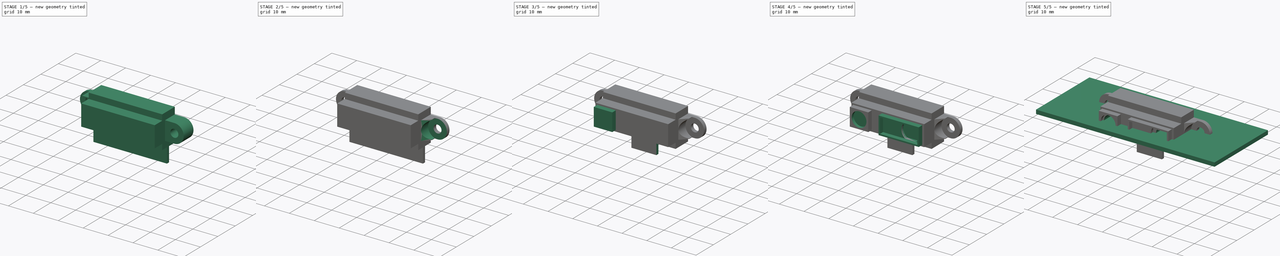
[diagram: build sequence overview — one tinted view per stage of 5, left to right]
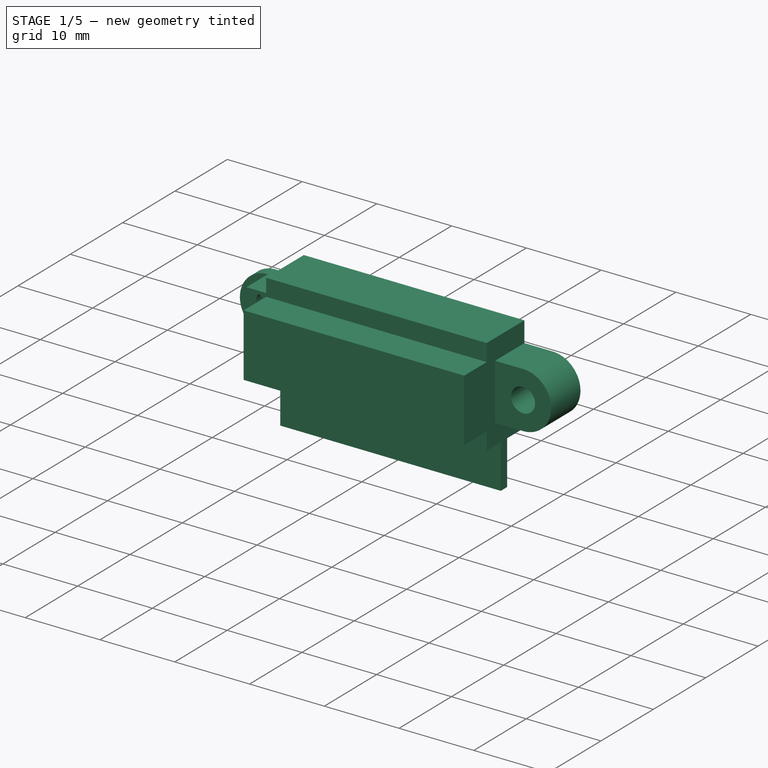
[diagram: stage 1 of 5 — iso view after this stage's code; geometry added in this stage tinted green]
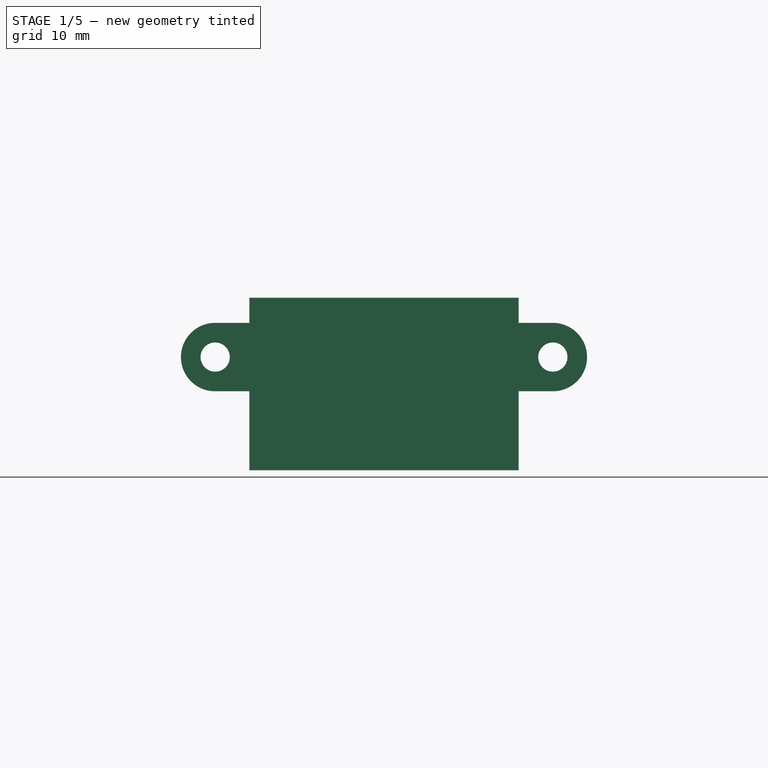
[diagram: stage 1 of 5 — front view after this stage's code; geometry added in this stage tinted green]
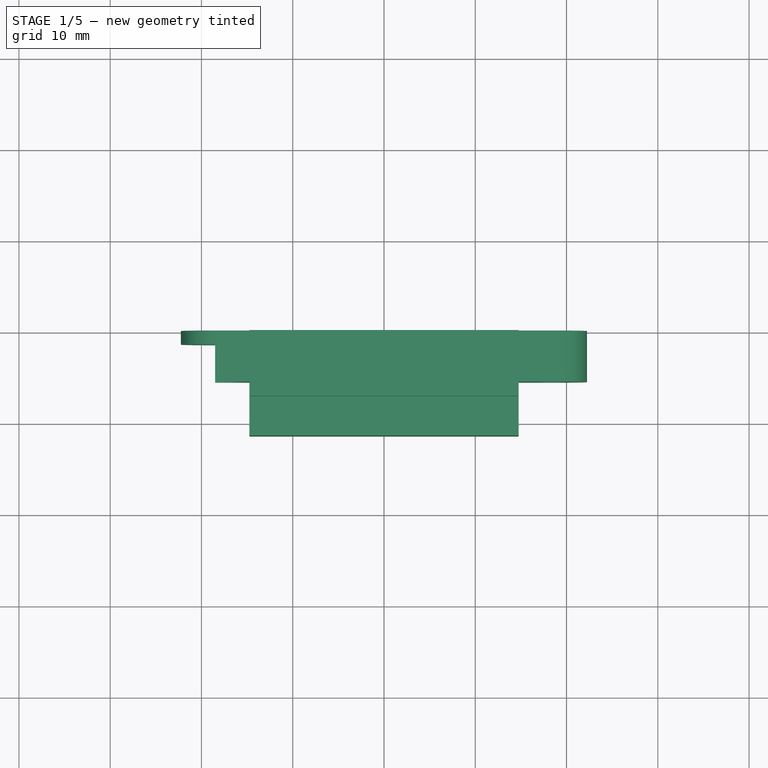
[diagram: stage 1 of 5 — top view after this stage's code; geometry added in this stage tinted green]
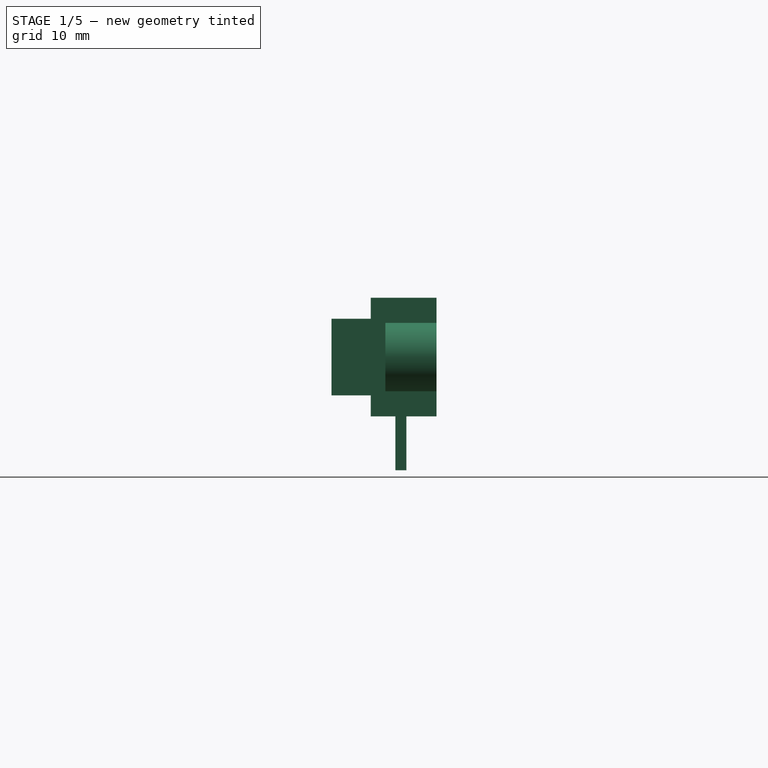
[diagram: stage 1 of 5 — right view after this stage's code; geometry added in this stage tinted green]
FCSTD DOCUMENT  (FreeCAD 0.17R13528 (Git))
Label: Sharp_GP2D120XJ00F
License: All rights reserved
LicenseURL: http://en.wikipedia.org/wiki/All_rights_reserved
objects: Sketcher::SketchObject×14, PartDesign::Pocket×10, Part::Feature×10, PartDesign::Pad×4, PartDesign::Mirrored×4, Part::FeaturePython×4, App::DocumentObjectGroup×2, PartDesign::Body×1, App::VRMLObject×1
note: 61 computed .brp shape members not serialized (recipe doc carries the construction recipe); baked Part::Feature solids carry a one-line shape summary decoded from their .brp

FEATURE [Sketcher::SketchObject] Sketch001
  MapMode = 5
  Placement = pos=(0,0,0) rot=(0.57735,0.57735,0.57735;2.0944rad)
  Support = -> [YZ_Plane001]
  sketch-geometry (12):
    g0: LineSegment StartX=0 StartY=6.5 StartZ=0 EndX=0 EndY=-6.5 EndZ=0
    g1: LineSegment StartX=0 StartY=-6.5 StartZ=0 EndX=-3.3 EndY=-6.5 EndZ=0
    g2: LineSegment StartX=-7.2 StartY=-6.5 StartZ=0 EndX=-7.2 EndY=-4.2 EndZ=0
    g3: LineSegment StartX=-7.2 StartY=-4.2 StartZ=0 EndX=-11.5 EndY=-4.2 EndZ=0
    g4: LineSegment StartX=-11.5 StartY=-4.2 StartZ=0 EndX=-11.5 EndY=4.2 EndZ=0
    g5: LineSegment StartX=-11.5 StartY=4.2 StartZ=0 EndX=-7.2 EndY=4.2 EndZ=0
    g6: LineSegment StartX=-7.2 StartY=4.2 StartZ=0 EndX=-7.2 EndY=6.5 EndZ=0
    g7: LineSegment StartX=-7.2 StartY=6.5 StartZ=0 EndX=0 EndY=6.5 EndZ=0
    g8: LineSegment StartX=-4.5 StartY=-6.5 StartZ=0 EndX=-4.5 EndY=-12.4 EndZ=0
    g9: LineSegment StartX=-4.5 StartY=-12.4 StartZ=0 EndX=-3.3 EndY=-12.4 EndZ=0
    g10: LineSegment StartX=-3.3 StartY=-12.4 StartZ=0 EndX=-3.3 EndY=-6.5 EndZ=0
    g11: LineSegment StartX=-4.5 StartY=-6.5 StartZ=0 EndX=-7.2 EndY=-6.5 EndZ=0
  constraints (34):
    c: Vertical(g0)
    c: Coincident(g1,g0)
    c: Horizontal(g1)
    c: Coincident(g2,g11)
    c: Vertical(g2)
    c: Coincident(g3,g2)
    c: Horizontal(g3)
    c: Vertical(g4)
    c: Coincident(g5,g4)
    c: Horizontal(g5)
    c: Coincident(g6,g5)
    c: Vertical(g6)
    c: Coincident(g7,g6)
    c: Coincident(g7,g0)
    c: Horizontal(g7)
    c: Symmetric(g0,g0,g-1)
    c: Symmetric(g5,g2,g-1)
    c: Vertical(g8)
    c: Coincident(g9,g8)
    c: Horizontal(g9)
    c: Coincident(g10,g9)
    c: Vertical(g10)
    c: DistanceY(g3,g4) = 8.4
    c: DistanceY(g11,g6) = 13
    c: DistanceX(g9,g0) = 3.3
    c: DistanceX(g9,g9) = 1.2
    c: PointOnObject(g0,g-2)
    c: DistanceY(g8,g6) = 18.9
    c: Coincident(g1,g10)
    c: Coincident(g11,g8)
    c: Tangent(g1,g11)
    c: Coincident(g4,g3)
    c: DistanceX(g5,g5) = 4.3
    c: DistanceX(g4,g0) = 11.5
FEATURE [PartDesign::Pad] Pad
  Length = 29.5
  Length2 = 100
  Midplane = true
  Placement = pos=(0,0,0) rot=(0.57735,0.57735,0.57735;2.0944rad)
  Profile = -> Sketch001
  Refine = true
  Type = 0
FEATURE [Sketcher::SketchObject] Sketch002
  ExternalGeometry = -> [Pad]
  MapMode = 5
  Placement = pos=(0,0,0) rot=(1,0,0;1.5708rad)
  Support = -> [XZ_Plane001]
  sketch-geometry (6):
    g0: Circle CenterX=-18.5 CenterY=0 CenterZ=0 NormalX=0 NormalY=0 NormalZ=1 AngleXU=0 Radius=1.6
    g1: ArcOfCircle CenterX=-18.5 CenterY=0 CenterZ=0 NormalX=0 NormalY=0 NormalZ=1 AngleXU=0 Radius=3.75 StartAngle=1.5708 EndAngle=4.71239
    g2: LineSegment StartX=-18.5 StartY=3.75 StartZ=0 EndX=-14.75 EndY=3.75 EndZ=0
    g3: LineSegment StartX=-18.5 StartY=-3.75 StartZ=0 EndX=-14.75 EndY=-3.75 EndZ=0
    g4: LineSegment StartX=-14.75 StartY=-3.75 StartZ=0 EndX=-14.75 EndY=3.75 EndZ=0
    g5: LineSegment [constr] StartX=-18.5 StartY=3.75 StartZ=0 EndX=-18.5 EndY=-3.75 EndZ=0
  constraints (18):
    c: PointOnObject(g0,g-1)
    c: Coincident(g2,g1)
    c: Horizontal(g2)
    c: Coincident(g3,g1)
    c: Horizontal(g3)
    c: Coincident(g4,g3)
    c: Coincident(g4,g2)
    c: Vertical(g4)
    c: Coincident(g0,g1)
    c: Coincident(g5,g1)
    c: Coincident(g5,g1)
    c: Vertical(g5)
    c: PointOnObject(g0,g5)
    c: Equal(g1,g2)
    c: DistanceX(g2,g2) = 3.75
    c: Radius(g0) = 1.6
    c: Radius(g1) = 3.75
    c: PointOnObject(g2,g-3)
FEATURE [PartDesign::Pad] Pad002
  BaseFeature = -> Pad
  Length = 5.6
  Length2 = 100
  Placement = pos=(0,0,0) rot=(0.57735,0.57735,0.57735;2.0944rad)
  Profile = -> Sketch002
  Refine = true
  Type = 0
FEATURE [PartDesign::Mirrored] Mirrored
  BaseFeature = -> Pad002
  MirrorPlane = -> Sketch002 [V_Axis]
  Originals = -> [Pad002]
  Placement = pos=(0,0,0) rot=(0.57735,0.57735,0.57735;2.0944rad)
  Refine = true
FEATURE [Sketcher::SketchObject] Sketch003
  ExternalGeometry = -> [Mirrored]
  MapMode = 5
  Placement = pos=(0,-5.6,0) rot=(0.57735,0.57735,-0.57735;2.0944rad)
  Support = -> [Mirrored]
  sketch-geometry (1):
    g0: Circle CenterX=0 CenterY=-18.5 CenterZ=0 NormalX=0 NormalY=0 NormalZ=1 AngleXU=0 Radius=3.75
  constraints (2):
    c: Coincident(g0,g-3)
    c: Tangent(g0,g-4)
FEATURE [PartDesign::Pocket] Pocket
  BaseFeature = -> Mirrored
  Length = 4.1
  Length2 = 100
  Placement = pos=(0,0,0) rot=(0.57735,0.57735,0.57735;2.0944rad)
  Profile = -> Sketch003
  Refine = true
  Type = 0
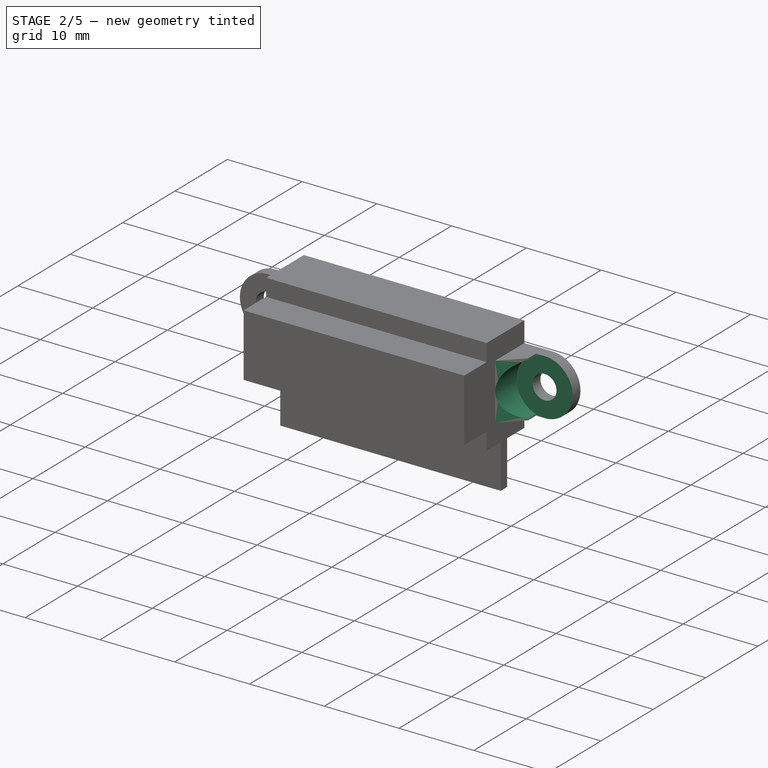
[diagram: stage 2 of 5 — iso view after this stage's code; geometry added in this stage tinted green]
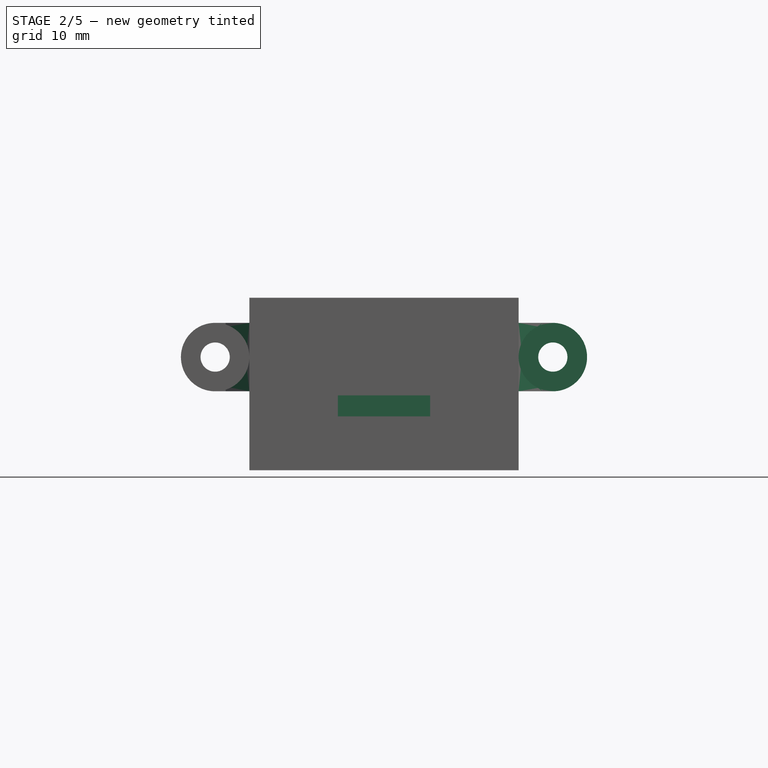
[diagram: stage 2 of 5 — front view after this stage's code; geometry added in this stage tinted green]
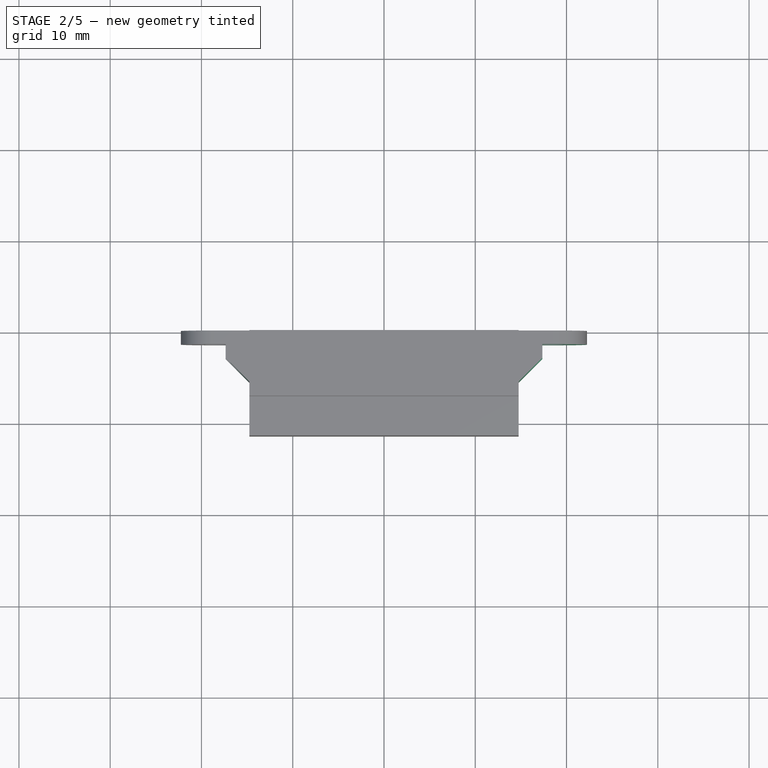
[diagram: stage 2 of 5 — top view after this stage's code; geometry added in this stage tinted green]
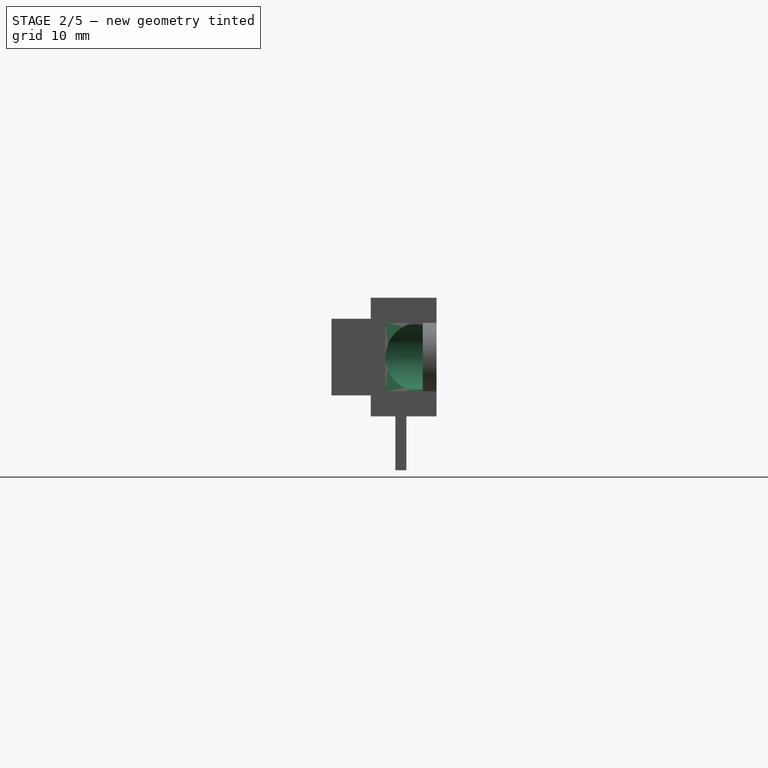
[diagram: stage 2 of 5 — right view after this stage's code; geometry added in this stage tinted green]
FEATURE [PartDesign::Mirrored] Mirrored001
  BaseFeature = -> Pocket
  MirrorPlane = -> Sketch003 [H_Axis]
  Originals = -> [Pocket]
  Placement = pos=(0,0,0) rot=(0.57735,0.57735,0.57735;2.0944rad)
  Refine = true
FEATURE [Sketcher::SketchObject] Sketch004
  ExternalGeometry = -> [Mirrored001]
  MapMode = 5
  Support = -> [XY_Plane001]
  sketch-geometry (5):
    g0: LineSegment StartX=-17.35 StartY=-3 StartZ=0 EndX=-14.75 EndY=-5.6 EndZ=0
    g1: LineSegment StartX=-17.35 StartY=-3 StartZ=0 EndX=-17.35 EndY=-1.5 EndZ=0
    g2: LineSegment StartX=-17.35 StartY=-1.5 StartZ=0 EndX=-18.5 EndY=-1.5 EndZ=0
    g3: LineSegment StartX=-18.5 StartY=-1.5 StartZ=0 EndX=-18.5 EndY=-5.6 EndZ=0
    g4: LineSegment StartX=-18.5 StartY=-5.6 StartZ=0 EndX=-14.75 EndY=-5.6 EndZ=0
  constraints (12):
    c: Angle(g0) = -0.785398
    c: Coincident(g1,g0)
    c: Vertical(g1)
    c: Coincident(g2,g1)
    c: Horizontal(g2)
    c: Coincident(g3,g2)
    c: Coincident(g4,g3)
    c: Coincident(g4,g0)
    c: Vertical(g3)
    c: Horizontal(g4)
    c: DistanceY(g3,g3) = 4.1
    c: DistanceX(g0,g0) = 2.6
FEATURE [PartDesign::Pocket] Pocket001
  BaseFeature = -> Mirrored001
  Length = 5
  Length2 = 100
  Midplane = true
  Placement = pos=(0,0,0) rot=(0.57735,0.57735,0.57735;2.0944rad)
  Profile = -> Sketch004
  Refine = true
  Type = 1
FEATURE [PartDesign::Mirrored] Mirrored002
  BaseFeature = -> Pocket001
  MirrorPlane = -> Sketch004 [V_Axis]
  Originals = -> [Pocket001]
  Placement = pos=(0,0,0) rot=(0.57735,0.57735,0.57735;2.0944rad)
  Refine = true
FEATURE [Sketcher::SketchObject] Sketch005
  ExternalGeometry = -> [Mirrored002]
  MapMode = 5
  Placement = pos=(0,-7.2,0) rot=(-0.57735,-0.57735,0.57735;4.18879rad)
  Support = -> [Mirrored002]
  sketch-geometry (4):
    g0: LineSegment StartX=4.2 StartY=5.05 StartZ=0 EndX=6.5 EndY=5.05 EndZ=0
    g1: LineSegment StartX=6.5 StartY=5.05 StartZ=0 EndX=6.5 EndY=-5.05 EndZ=0
    g2: LineSegment StartX=6.5 StartY=-5.05 StartZ=0 EndX=4.2 EndY=-5.05 EndZ=0
    g3: LineSegment StartX=4.2 StartY=-5.05 StartZ=0 EndX=4.2 EndY=5.05 EndZ=0
  constraints (12):
    c: Coincident(g0,g1)
    c: Coincident(g1,g2)
    c: Coincident(g2,g3)
    c: Coincident(g3,g0)
    c: Horizontal(g0)
    c: Horizontal(g2)
    c: Vertical(g1)
    c: Vertical(g3)
    c: PointOnObject(g0,g-3)
    c: DistanceY(g1,g1) = 10.1
    c: Symmetric(g0,g1,g-1)
    c: PointOnObject(g2,g-5)
FEATURE [PartDesign::Pocket] Pocket002
  BaseFeature = -> Mirrored002
  Length = 0
  Length2 = 100
  Placement = pos=(0,0,0) rot=(0.57735,0.57735,0.57735;2.0944rad)
  Profile = -> Sketch005
  Refine = true
  Type = 3
  UpToFace = -> Mirrored002 [Face2]
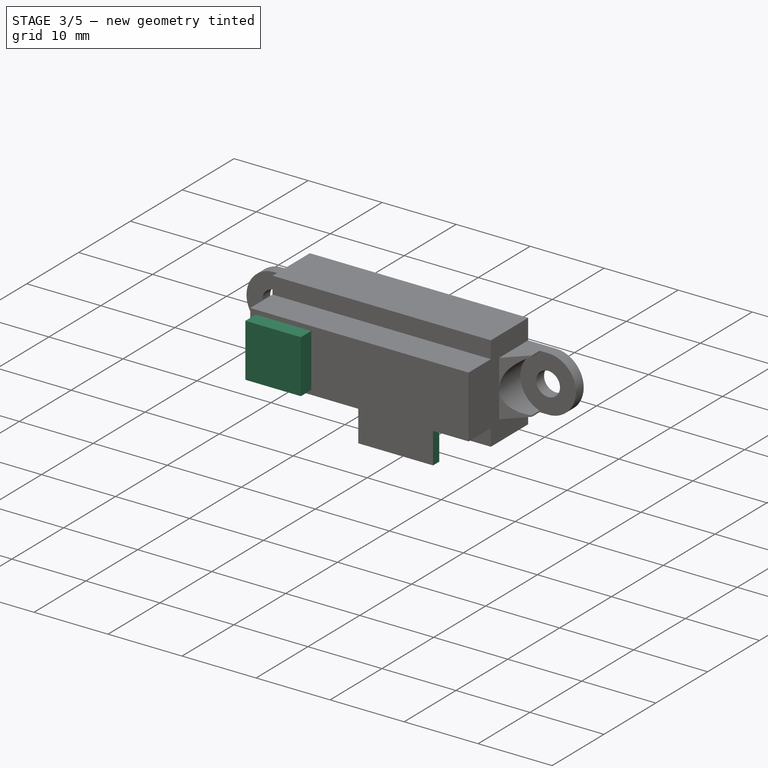
[diagram: stage 3 of 5 — iso view after this stage's code; geometry added in this stage tinted green]
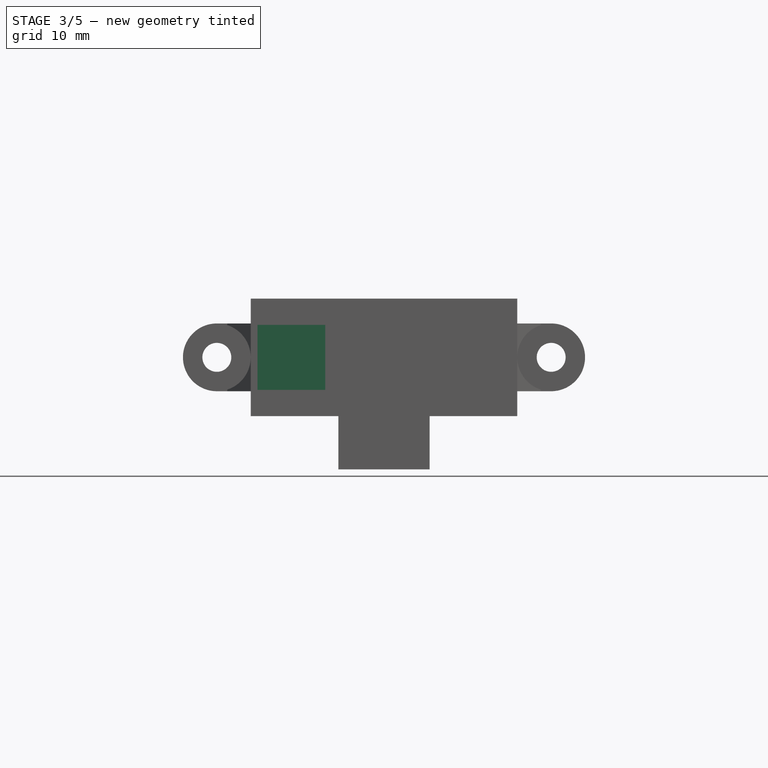
[diagram: stage 3 of 5 — front view after this stage's code; geometry added in this stage tinted green]
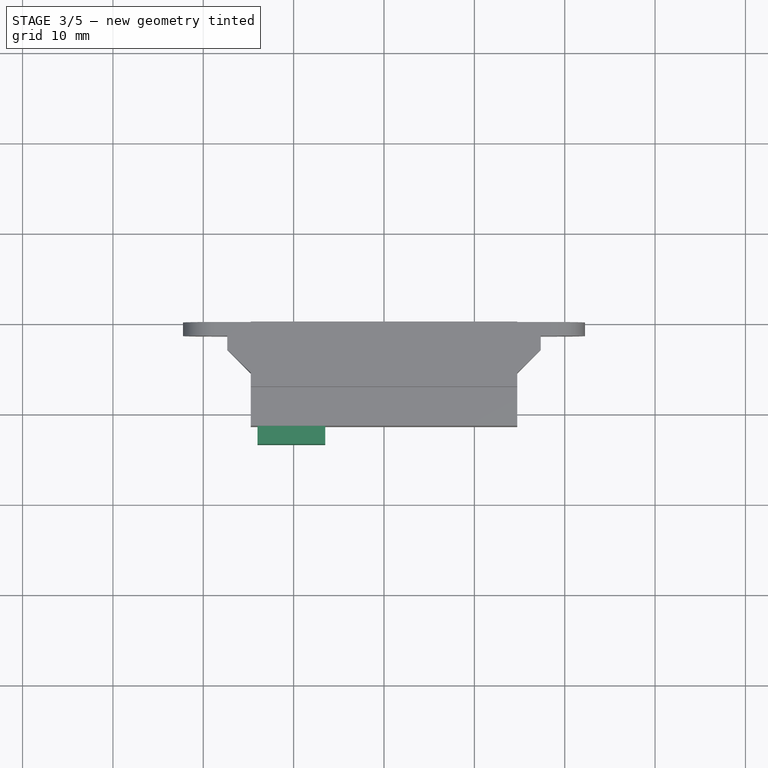
[diagram: stage 3 of 5 — top view after this stage's code; geometry added in this stage tinted green]
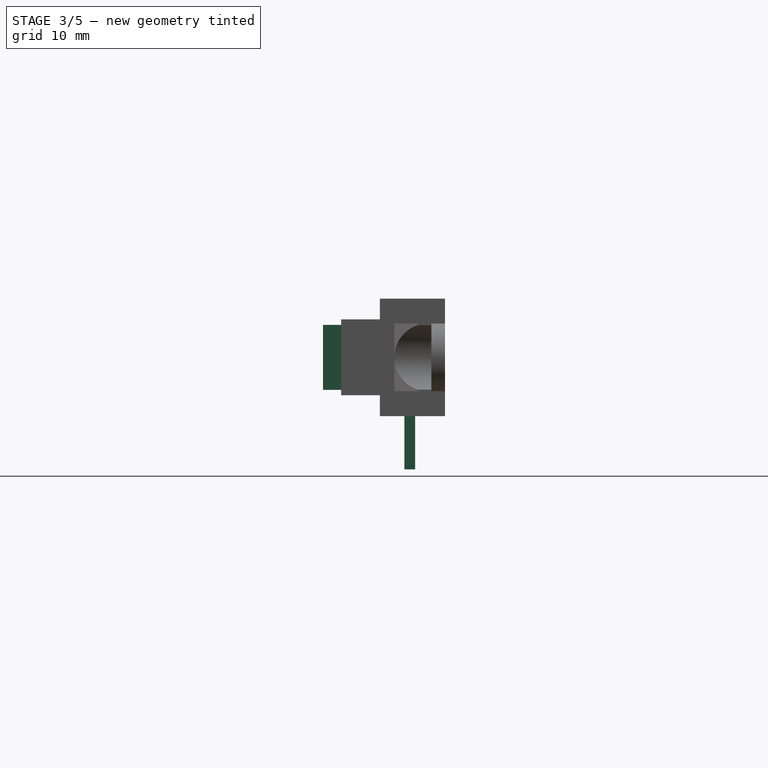
[diagram: stage 3 of 5 — right view after this stage's code; geometry added in this stage tinted green]
FEATURE [Sketcher::SketchObject] Sketch
  ExternalGeometry = -> [Pocket002]
  MapMode = 5
  Placement = pos=(0,-4.5,0) rot=(-0.57735,-0.57735,0.57735;4.18879rad)
  Support = -> [Pocket002]
  sketch-geometry (4):
    g0: LineSegment StartX=6.5 StartY=-5.05 StartZ=0 EndX=12.4 EndY=-5.05 EndZ=0
    g1: LineSegment StartX=12.4 StartY=-5.05 StartZ=0 EndX=12.4 EndY=-14.75 EndZ=0
    g2: LineSegment StartX=12.4 StartY=-14.75 StartZ=0 EndX=6.5 EndY=-14.75 EndZ=0
    g3: LineSegment StartX=6.5 StartY=-14.75 StartZ=0 EndX=6.5 EndY=-5.05 EndZ=0
  constraints (10):
    c: Coincident(g0,g1)
    c: Coincident(g1,g2)
    c: Coincident(g2,g3)
    c: Coincident(g3,g0)
    c: Horizontal(g0)
    c: Horizontal(g2)
    c: Vertical(g1)
    c: Vertical(g3)
    c: Coincident(g0,g-3)
    c: Coincident(g1,g-4)
FEATURE [PartDesign::Pocket] Pocket003
  BaseFeature = -> Pocket002
  Length = 0
  Length2 = 100
  Placement = pos=(0,0,0) rot=(0.57735,0.57735,0.57735;2.0944rad)
  Profile = -> Sketch
  Refine = true
  Type = 3
  UpToFace = -> Pocket002 [Face17]
FEATURE [PartDesign::Mirrored] Mirrored003
  BaseFeature = -> Pocket003
  MirrorPlane = -> Sketch [H_Axis]
  Originals = -> [Pocket003]
  Placement = pos=(0,0,0) rot=(0.57735,0.57735,0.57735;2.0944rad)
  Refine = true
FEATURE [Sketcher::SketchObject] Sketch006
  ExternalGeometry = -> [Mirrored003]
  MapMode = 5
  Placement = pos=(0,-11.5,0) rot=(-0.57735,-0.57735,0.57735;4.18879rad)
  Support = -> [Mirrored003]
  sketch-geometry (4):
    g0: LineSegment StartX=-3.6 StartY=-6.5 StartZ=0 EndX=3.6 EndY=-6.5 EndZ=0
    g1: LineSegment StartX=3.6 StartY=-6.5 StartZ=0 EndX=3.6 EndY=-14 EndZ=0
    g2: LineSegment StartX=3.6 StartY=-14 StartZ=0 EndX=-3.6 EndY=-14 EndZ=0
    g3: LineSegment StartX=-3.6 StartY=-14 StartZ=0 EndX=-3.6 EndY=-6.5 EndZ=0
  constraints (12):
    c: Coincident(g0,g1)
    c: Coincident(g1,g2)
    c: Coincident(g2,g3)
    c: Coincident(g3,g0)
    c: Horizontal(g0)
    c: Horizontal(g2)
    c: Vertical(g1)
    c: Vertical(g3)
    c: Symmetric(g1,g2,g-2)
    c: DistanceY(g1,g1) = 7.5
    c: DistanceY(g-3,g1) = 0.75
    c: DistanceX(g0,g0) = 7.2
FEATURE [PartDesign::Pad] Pad003
  BaseFeature = -> Mirrored003
  Length = 2
  Length2 = 100
  Placement = pos=(0,0,0) rot=(0.57735,0.57735,0.57735;2.0944rad)
  Profile = -> Sketch006
  Refine = true
  Type = 0
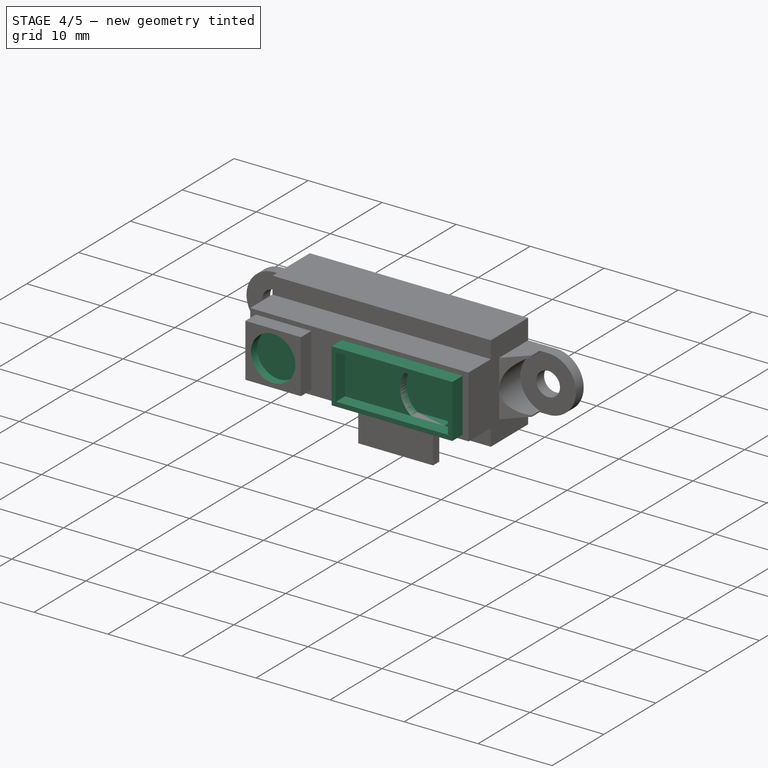
[diagram: stage 4 of 5 — iso view after this stage's code; geometry added in this stage tinted green]
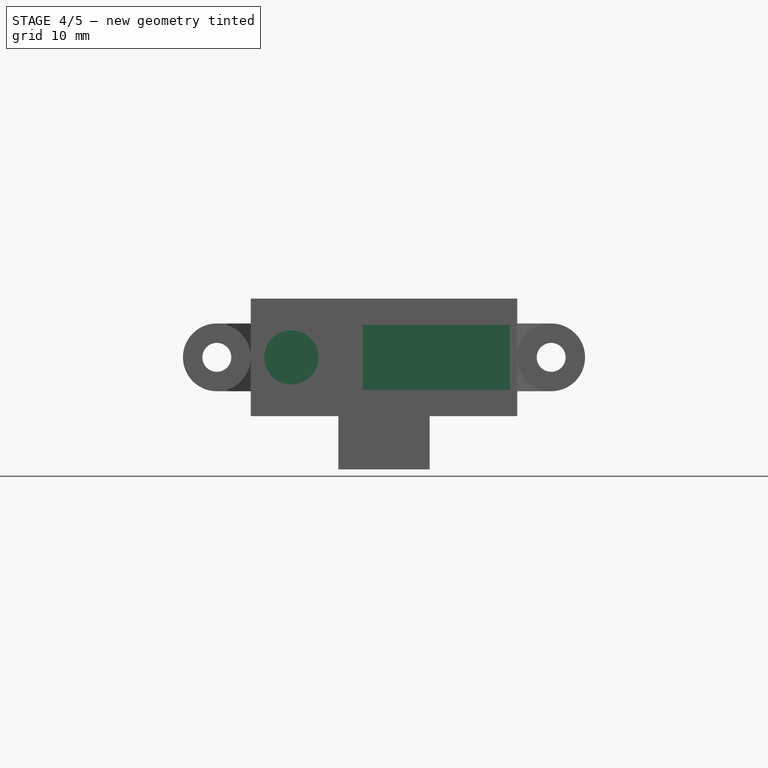
[diagram: stage 4 of 5 — front view after this stage's code; geometry added in this stage tinted green]
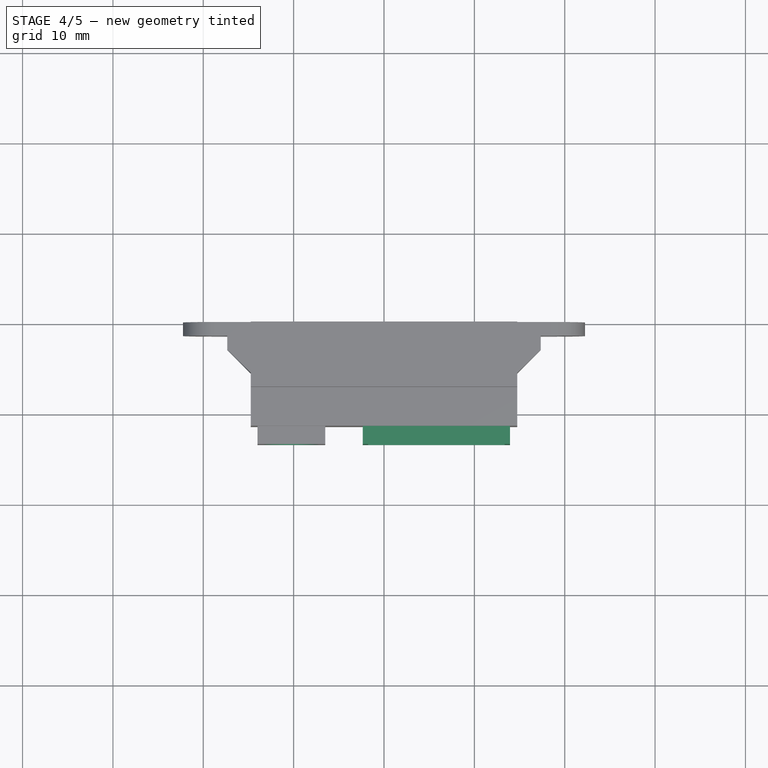
[diagram: stage 4 of 5 — top view after this stage's code; geometry added in this stage tinted green]
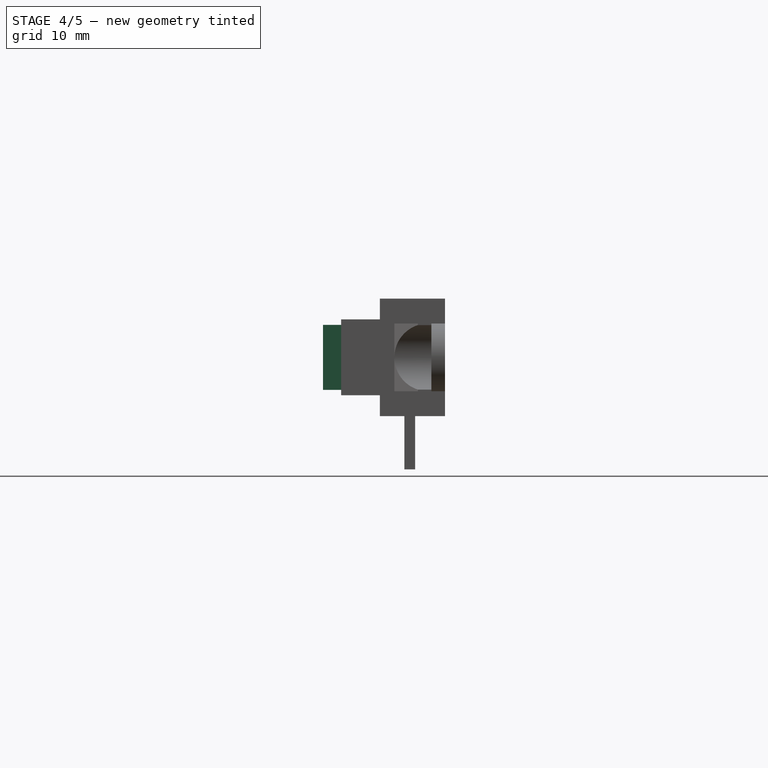
[diagram: stage 4 of 5 — right view after this stage's code; geometry added in this stage tinted green]
FEATURE [Sketcher::SketchObject] Sketch007
  ExternalGeometry = -> [Pad003]
  MapMode = 5
  Placement = pos=(0,-11.5,0) rot=(-0.57735,-0.57735,0.57735;4.18879rad)
  Support = -> [Pad003]
  sketch-geometry (4):
    g0: LineSegment StartX=-3.6 StartY=13.95 StartZ=0 EndX=3.6 EndY=13.95 EndZ=0
    g1: LineSegment StartX=3.6 StartY=13.95 StartZ=0 EndX=3.6 EndY=-2.35 EndZ=0
    g2: LineSegment StartX=3.6 StartY=-2.35 StartZ=0 EndX=-3.6 EndY=-2.35 EndZ=0
    g3: LineSegment StartX=-3.6 StartY=-2.35 StartZ=0 EndX=-3.6 EndY=13.95 EndZ=0
  constraints (12):
    c: Coincident(g0,g1)
    c: Coincident(g1,g2)
    c: Coincident(g2,g3)
    c: Coincident(g3,g0)
    c: Horizontal(g0)
    c: Horizontal(g2)
    c: Vertical(g1)
    c: Vertical(g3)
    c: DistanceY(g-3,g2) = 4.15
    c: Symmetric(g2,g1,g-2)
    c: Equal(g-3,g2)
    c: DistanceY(g3,g3) = 16.3
FEATURE [PartDesign::Pad] Pad004
  BaseFeature = -> Pad003
  Length = 2
  Length2 = 100
  Placement = pos=(0,0,0) rot=(0.57735,0.57735,0.57735;2.0944rad)
  Profile = -> Sketch007
  Refine = true
  Type = 0
FEATURE [Sketcher::SketchObject] Sketch008
  ExternalGeometry = -> [Pad004]
  MapMode = 5
  Placement = pos=(0,-13.5,0) rot=(0.57735,0.57735,-0.57735;2.0944rad)
  Support = -> [Pad004]
  sketch-geometry (4):
    g0: LineSegment [constr] StartX=-3.6 StartY=-14 StartZ=0 EndX=3.6 EndY=-6.5 EndZ=0
    g1: LineSegment [constr] StartX=3.6 StartY=-14 StartZ=0 EndX=-3.6 EndY=-6.5 EndZ=0
    g2: GeomPoint X=0 Y=-10.25 Z=0
    g3: Circle CenterX=0 CenterY=-10.25 CenterZ=0 NormalX=0 NormalY=0 NormalZ=1 AngleXU=0 Radius=3
  constraints (8):
    c: Coincident(g0,g-3)
    c: Coincident(g0,g-4)
    c: Coincident(g1,g-4)
    c: Coincident(g1,g-3)
    c: PointOnObject(g2,g1)
    c: PointOnObject(g2,g0)
    c: Coincident(g3,g2)
    c: Radius(g3) = 3
FEATURE [PartDesign::Pocket] Pocket004
  BaseFeature = -> Pad004
  Length = 1.2
  Length2 = 100
  Placement = pos=(0,0,0) rot=(0.57735,0.57735,0.57735;2.0944rad)
  Profile = -> Sketch008
  Refine = true
  Type = 0
FEATURE [Sketcher::SketchObject] Sketch009
  ExternalGeometry = -> [Pocket004]
  MapMode = 5
  Placement = pos=(0,-12.3,0) rot=(0.57735,0.57735,-0.57735;2.0944rad)
  Support = -> [Pocket004]
  sketch-geometry (1):
    g0: Circle CenterX=0 CenterY=-10.25 CenterZ=0 NormalX=0 NormalY=0 NormalZ=1 AngleXU=0 Radius=2.5
  constraints (2):
    c: Coincident(g0,g-3)
    c: Radius(g0) = 2.5
FEATURE [Sketcher::SketchObject] Sketch010
  MapMode = 5
  Placement = pos=(0,-13.5,0) rot=(0.57735,0.57735,-0.57735;2.0944rad)
  sketch-geometry (4):
    g0: LineSegment StartX=-3 StartY=13.35 StartZ=0 EndX=3 EndY=13.35 EndZ=0
    g1: LineSegment StartX=3 StartY=13.35 StartZ=0 EndX=3 EndY=-1.75 EndZ=0
    g2: LineSegment StartX=3 StartY=-1.75 StartZ=0 EndX=-3 EndY=-1.75 EndZ=0
    g3: LineSegment StartX=-3 StartY=-1.75 StartZ=0 EndX=-3 EndY=13.35 EndZ=0
  constraints (8):
    c: Coincident(g0,g1)
    c: Coincident(g1,g2)
    c: Coincident(g2,g3)
    c: Coincident(g3,g0)
    c: Horizontal(g0)
    c: Horizontal(g2)
    c: Vertical(g1)
    c: Vertical(g3)
FEATURE [PartDesign::Pocket] Pocket005
  BaseFeature = -> Pocket004
  Length = 1.72
  Length2 = 100
  Placement = pos=(0,0,0) rot=(0.57735,0.57735,0.57735;2.0944rad)
  Profile = -> Sketch010
  Refine = true
  Type = 0
FEATURE [Sketcher::SketchObject] Sketch011
  ExternalGeometry = -> [Pocket005]
  MapMode = 5
  Placement = pos=(0,-11.78,0) rot=(0.57735,0.57735,-0.57735;2.0944rad)
  Support = -> [Pocket005]
  sketch-geometry (10):
    g0: LineSegment [constr] StartX=-3 StartY=13.35 StartZ=0 EndX=3 EndY=13.35 EndZ=0
    g1: LineSegment [constr] StartX=3 StartY=13.35 StartZ=0 EndX=3 EndY=-1.75 EndZ=0
    g2: LineSegment [constr] StartX=3 StartY=-1.75 StartZ=0 EndX=-3 EndY=-1.75 EndZ=0
    g3: LineSegment [constr] StartX=-3 StartY=-1.75 StartZ=0 EndX=-3 EndY=13.35 EndZ=0
    g4: LineSegment StartX=-3 StartY=11.7 StartZ=0 EndX=-3 EndY=7.2 EndZ=0
    g5: LineSegment StartX=3 StartY=7.2 StartZ=0 EndX=3 EndY=11.7 EndZ=0
    g6: ArcOfCircle CenterX=0 CenterY=9.45 CenterZ=0 NormalX=0 NormalY=0 NormalZ=1 AngleXU=0 Radius=3.75 StartAngle=3.78509 EndAngle=5.63968
    g7: ArcOfCircle CenterX=0 CenterY=9.45 CenterZ=0 NormalX=0 NormalY=0 NormalZ=1 AngleXU=0 Radius=3.75 StartAngle=0.643501 EndAngle=2.49809
    g8: GeomPoint X=0 Y=13.2 Z=0
    g9: GeomPoint X=0 Y=5.7 Z=0
FEATURE [PartDesign::Pocket] Pocket006
  BaseFeature = -> Pocket005
  Length = 1.2
  Length2 = 100
  Placement = pos=(0,0,0) rot=(0.57735,0.57735,0.57735;2.0944rad)
  Profile = -> Sketch011
  Refine = true
  Type = 0
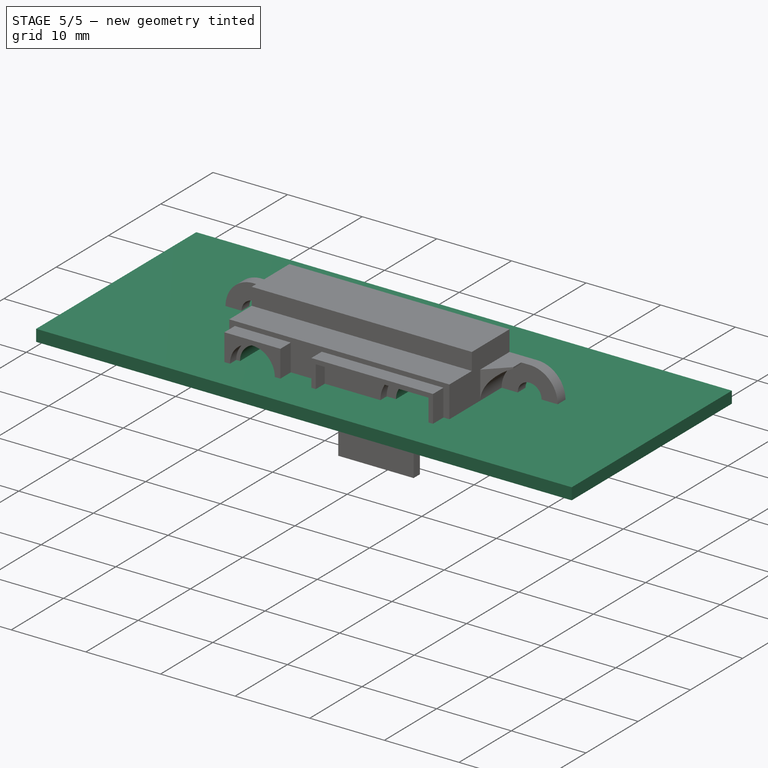
[diagram: stage 5 of 5 — iso view after this stage's code; geometry added in this stage tinted green]
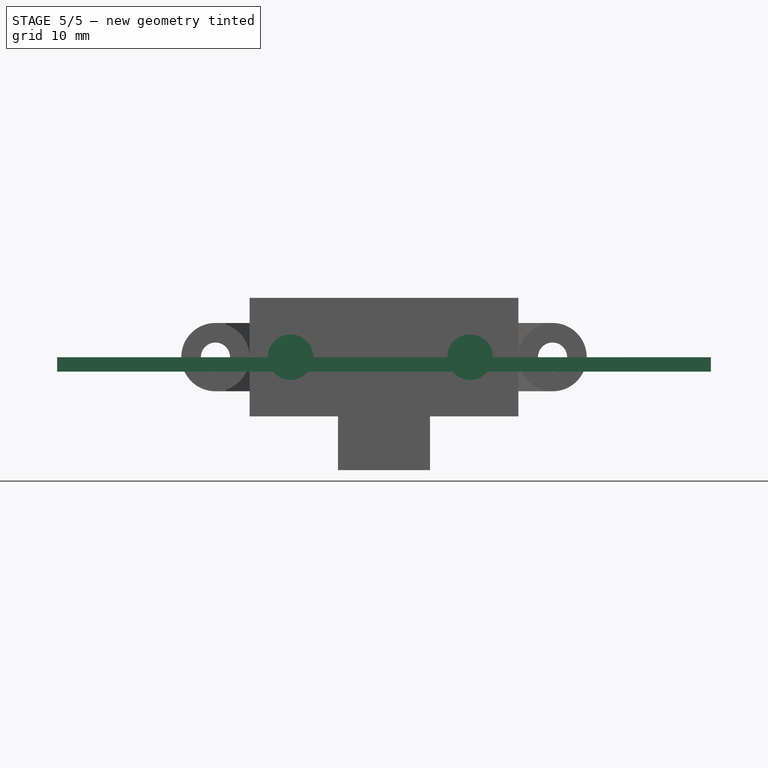
[diagram: stage 5 of 5 — front view after this stage's code; geometry added in this stage tinted green]
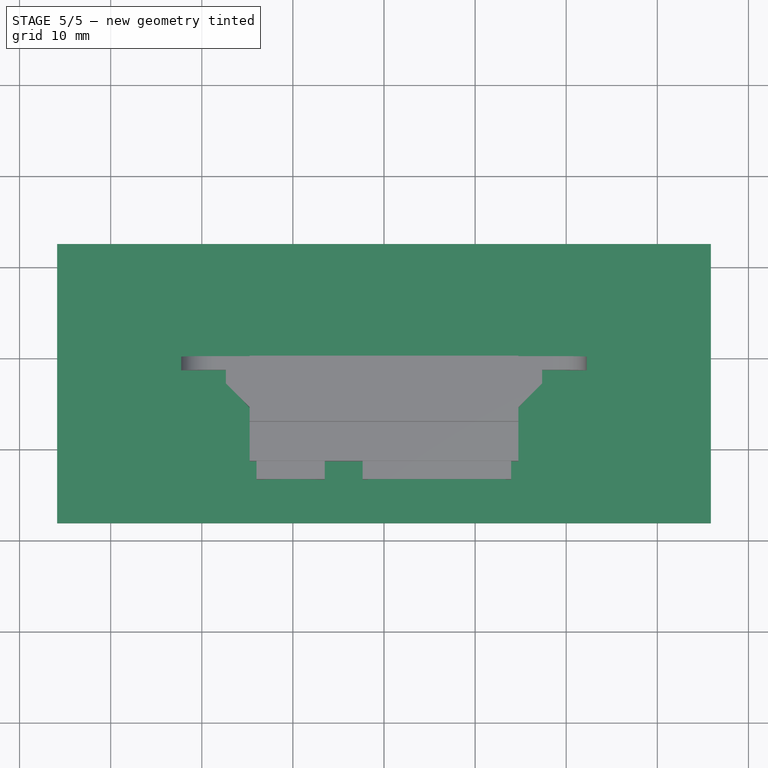
[diagram: stage 5 of 5 — top view after this stage's code; geometry added in this stage tinted green]
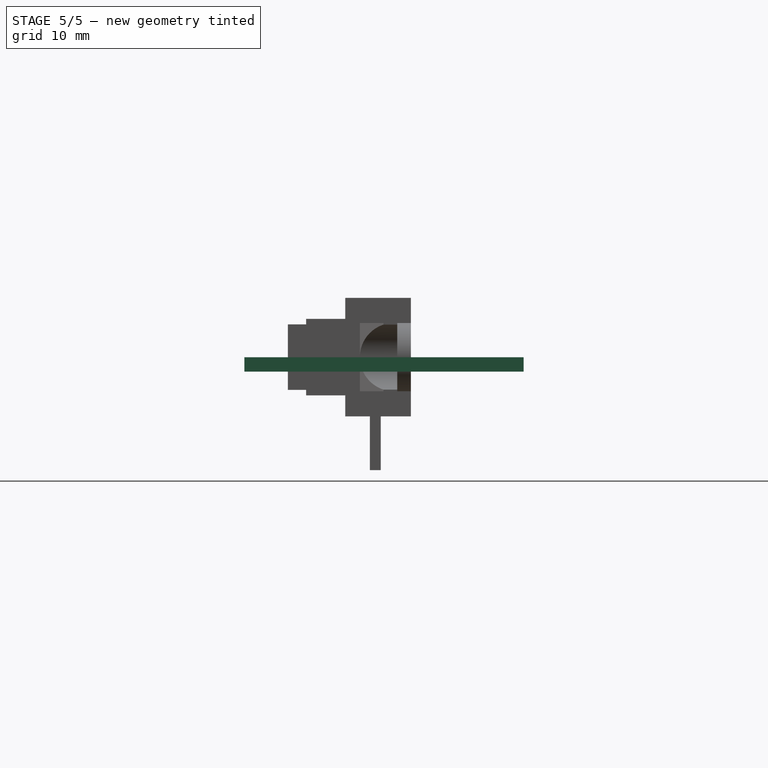
[diagram: stage 5 of 5 — right view after this stage's code; geometry added in this stage tinted green]
FEATURE [Sketcher::SketchObject] Sketch013
  MapMode = 5
  Placement = pos=(0,0,0) rot=(0.57735,0.57735,0.57735;4.18879rad)
  sketch-geometry (8):
    g0: LineSegment StartX=-5.8 StartY=14.05 StartZ=0 EndX=5.8 EndY=14.05 EndZ=0
    g1: LineSegment StartX=5.8 StartY=14.05 StartZ=0 EndX=5.8 EndY=-14.05 EndZ=0
    g2: LineSegment StartX=5.8 StartY=-14.05 StartZ=0 EndX=-5.8 EndY=-14.05 EndZ=0
    g3: LineSegment StartX=-5.8 StartY=14.05 StartZ=0 EndX=-5.8 EndY=5.05 EndZ=0
    g4: LineSegment StartX=-5.8 StartY=5.05 StartZ=0 EndX=-6.5 EndY=5.05 EndZ=0
    g5: LineSegment StartX=-6.5 StartY=5.05 StartZ=0 EndX=-6.5 EndY=-5.05 EndZ=0
    g6: LineSegment StartX=-6.5 StartY=-5.05 StartZ=0 EndX=-5.8 EndY=-5.05 EndZ=0
    g7: LineSegment StartX=-5.8 StartY=-5.05 StartZ=0 EndX=-5.8 EndY=-14.05 EndZ=0
  constraints (17):
    c: Coincident(g0,g1)
    c: Coincident(g1,g2)
    c: Horizontal(g0)
    c: Horizontal(g2)
    c: Vertical(g1)
    c: Coincident(g3,g0)
    c: Vertical(g3)
    c: Coincident(g4,g3)
    c: Horizontal(g4)
    c: Coincident(g5,g4)
    c: Vertical(g5)
    c: Coincident(g6,g5)
    c: Horizontal(g6)
    c: Coincident(g7,g6)
    c: Coincident(g7,g2)
    c: Vertical(g7)
    c: Symmetric(g2,g1,g-2)
FEATURE [Part::Feature] FusionAxisZ1  label="Z"
  shape: bbox 0.8 x 0.8 x 14 mm, 8 faces (baked)
FEATURE [Part::Feature] FusionAxisY1  label="Y"
  Placement = pos=(0,0,0.05) rot=(-1,0,0;1.5708rad)
  shape: bbox 0.8 x 14 x 0.8 mm, 8 faces (baked)
FEATURE [Part::Feature] FusionAxisX1  label="X"
  Placement = pos=(0,-0.05,0) rot=(0,1,0;1.5708rad)
  shape: bbox 14 x 0.8 x 0.8 mm, 8 faces (baked)
FEATURE [App::DocumentObjectGroup] axis
  Group = -> [FusionAxisZ1,FusionAxisY1,FusionAxisX1]
FEATURE [Part::FeaturePython] FCrtYd_lines  label="FCrtYd"  # a2plus imported part (geometry in sourceFile) (typed FeaturePython)
  fixedPosition = true
FEATURE [Part::FeaturePython] FFab_lines  label="FFab"  # a2plus imported part (geometry in sourceFile) (typed FeaturePython)
  fixedPosition = true
FEATURE [Part::FeaturePython] Filk_lines  label="FrontSilk"  # a2plus imported part (geometry in sourceFile) (typed FeaturePython)
  fixedPosition = true
FEATURE [Part::FeaturePython] newPCB  label="Pcb"  # a2plus imported part (geometry in sourceFile) (typed FeaturePython)
  fixedPosition = true
FEATURE [App::DocumentObjectGroup] Sharp_GP2Y0A41SK0F_KIT_fp
  Group = -> [FCrtYd_lines,FFab_lines,Filk_lines,newPCB]
FEATURE [Part::Feature] Shape  label="JST_S3B_PH_K"
  shape: bbox 7.9 x 7.6 x 8.25 mm, 142 faces (baked)
FEATURE [Part::Feature] Shape_Shape  label="JST_S3B_PH_K.copy"
  shape: bbox 7.9 x 7.6 x 8.25 mm, 142 faces (baked)
FEATURE [Sketcher::SketchObject] Sketch014
  ExternalGeometry = -> [Sketch009]
  MapMode = 5
  Placement = pos=(0,-10.58,0) rot=(0.57735,0.57735,-0.57735;2.0944rad)
  Support = -> [Pocket006]
  sketch-geometry (1):
    g0: Circle CenterX=0 CenterY=9.45 CenterZ=0 NormalX=0 NormalY=0 NormalZ=1 AngleXU=0 Radius=2.5
  constraints (3):
    c: Radius(g0) = 2.5
    c: DistanceY(g-3,g0) = 19.7
    c: PointOnObject(g0,g-2)
FEATURE [PartDesign::Pocket] Pocket007
  BaseFeature = -> Pocket006
  Length = 0
  Length2 = 100
  Placement = pos=(0,0,0) rot=(0.57735,0.57735,0.57735;2.0944rad)
  Profile = -> Sketch014
  Refine = true
  Type = 3
  UpToFace = -> Pocket006 [Face39]
FEATURE [PartDesign::Pocket] Pocket008
  BaseFeature = -> Pocket007
  Length = 0
  Length2 = 100
  Placement = pos=(0,0,0) rot=(0.57735,0.57735,0.57735;2.0944rad)
  Profile = -> Sketch009
  Refine = true
  Type = 3
  UpToFace = -> Pocket007 [Face39]
FEATURE [Part::Feature] Part__Feature  label="LED_Top1"
  Placement = pos=(-10.25,0,4.8) rot=(0,0,1;0rad)
  shape: bbox 5 x 5 x 2.5 mm, 3 faces (baked)
FEATURE [Part::Feature] Part__Feature002  label="LED_Top2"
  Placement = pos=(9.45,0,3.5) rot=(0,0,1;0rad)
  shape: bbox 5 x 5 x 2.5 mm, 3 faces (baked)
FEATURE [PartDesign::Pocket] Pocket009
  BaseFeature = -> Pocket008
  Length = 0
  Length2 = 100
  Placement = pos=(0,0,0) rot=(0.57735,0.57735,0.57735;2.0944rad)
  Profile = -> Sketch013
  Refine = true
  Type = 3
  UpToFace = -> Pocket008 [Face18]
FEATURE [PartDesign::Body] Body001
  Group = -> [Sketch001,Pad,Sketch002,Pad002,Mirrored,Sketch003,Pocket,Mirrored001,Sketch004,Pocket001,Mirrored002,Sketch005,Pocket002,Sketch,Pocket003,Mirrored003,Sketch006,Pad003,Sketch007,Pad004,Sketch008,Pocket004,Sketch009,Sketch010,Pocket005,Sketch011,Pocket006,Sketch013,Pocket007,Pocket008,Pocket009]
  Origin = -> Origin001
  Tip = -> Pocket009
FEATURE [Part::Feature] Shape001  label="Sensor_Body"
  Placement = pos=(0,3.8,9.71) rot=(0,0,1;0rad)
  shape: bbox 44.5 x 18.9 x 13.5 mm, 72 faces (baked)
FEATURE [App::VRMLObject] JST_S3B_PH_K  label="JST_S3B_PH_K001"
FEATURE [Part::Feature] JST_S3B_PH_K_mp_cp  label="JST_S3B_PH_K_sp"
  shape: bbox 44.5 x 18.9 x 13.5 mm, 220 faces, 4 solids (baked)
FEATURE [Part::Feature] Shape002  label="JST_S3B_PH_K_mp"
  shape: bbox 44.5 x 18.9 x 13.5 mm, 220 faces, 4 solids (baked)
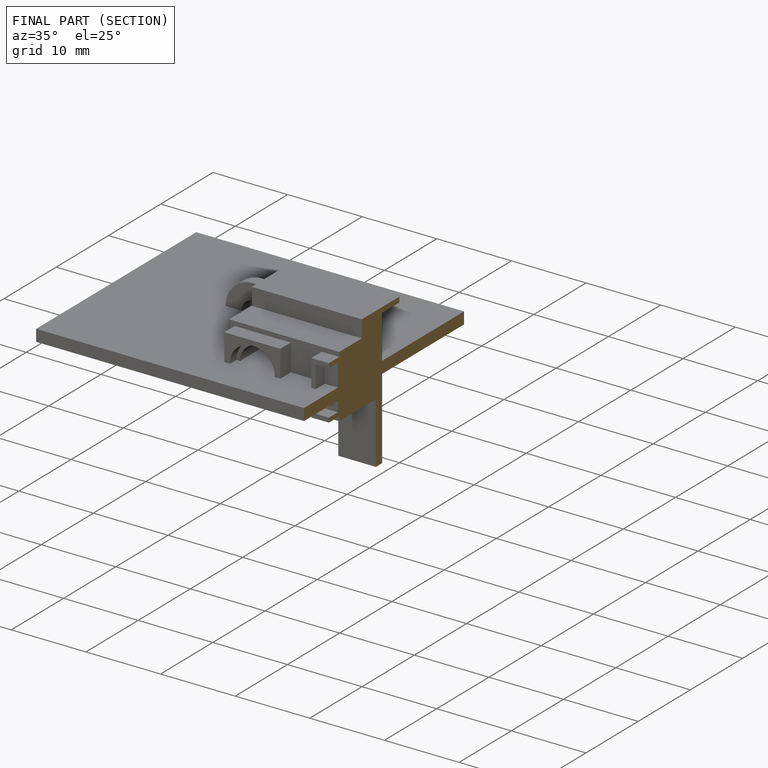
[diagram: finished part — half-section view (interior)]
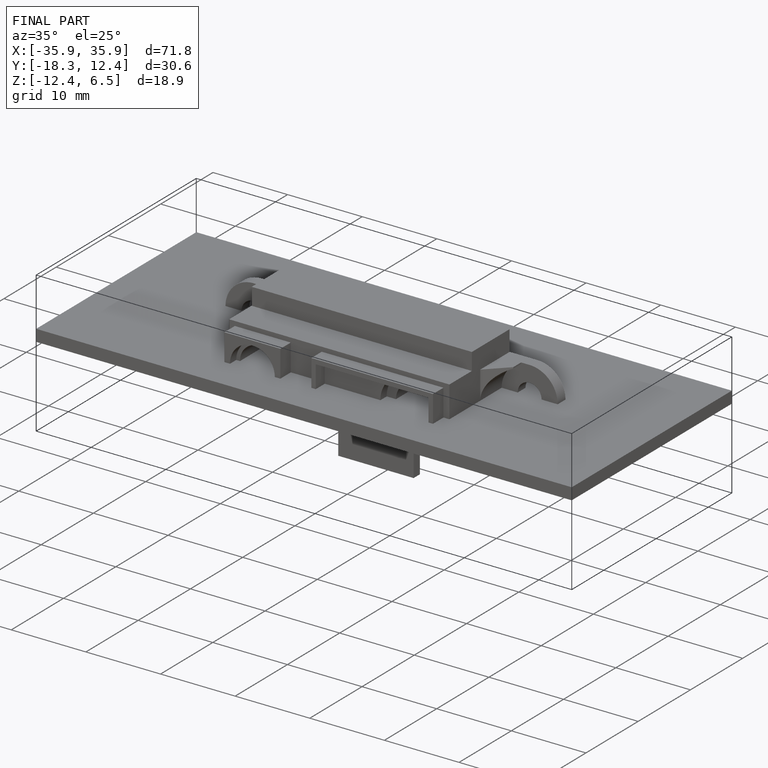
[diagram: finished part — iso view with bounding-box wireframe]
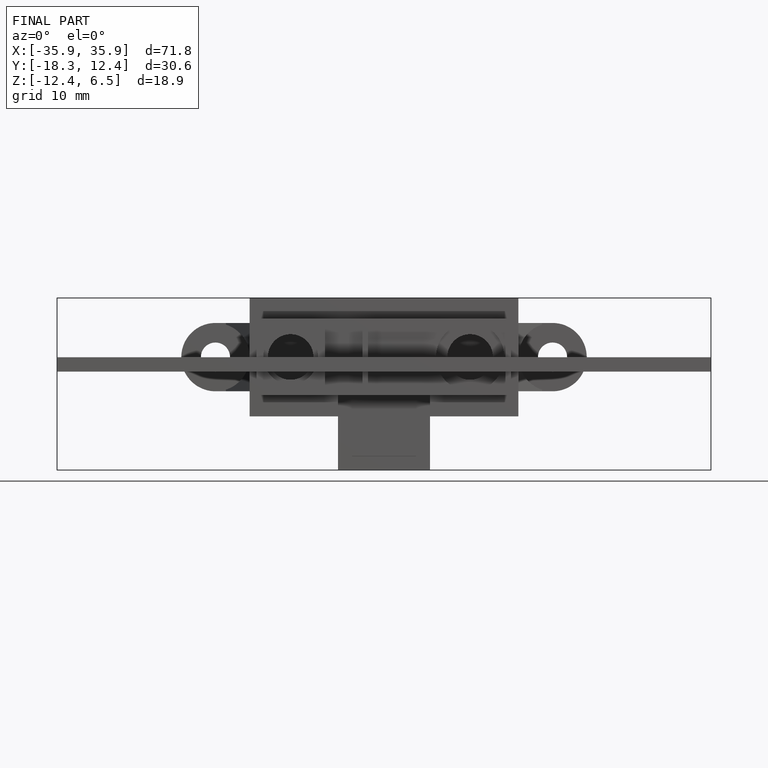
[diagram: finished part — front view with bounding-box wireframe]
